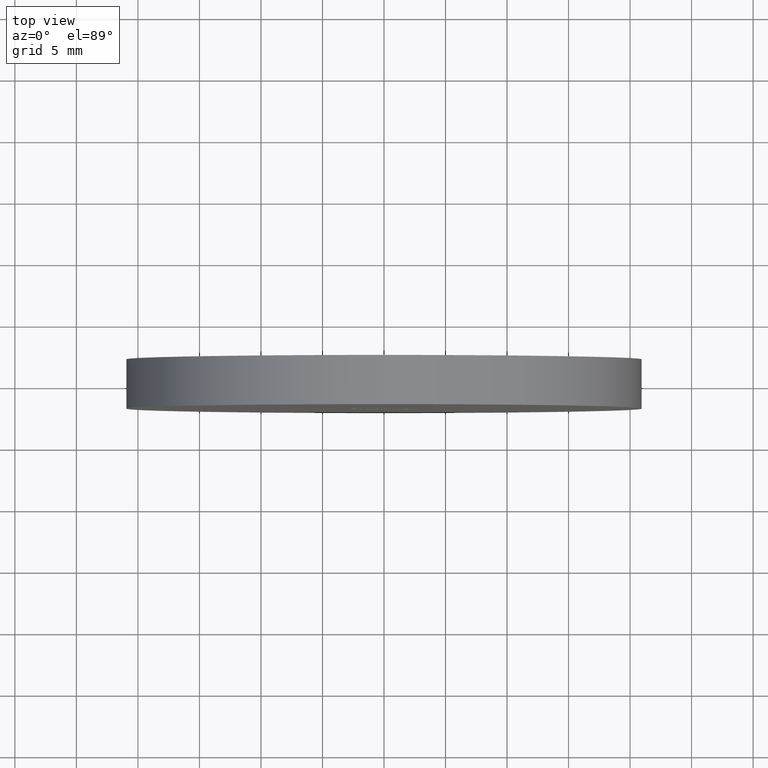
[diagram: clean part render]
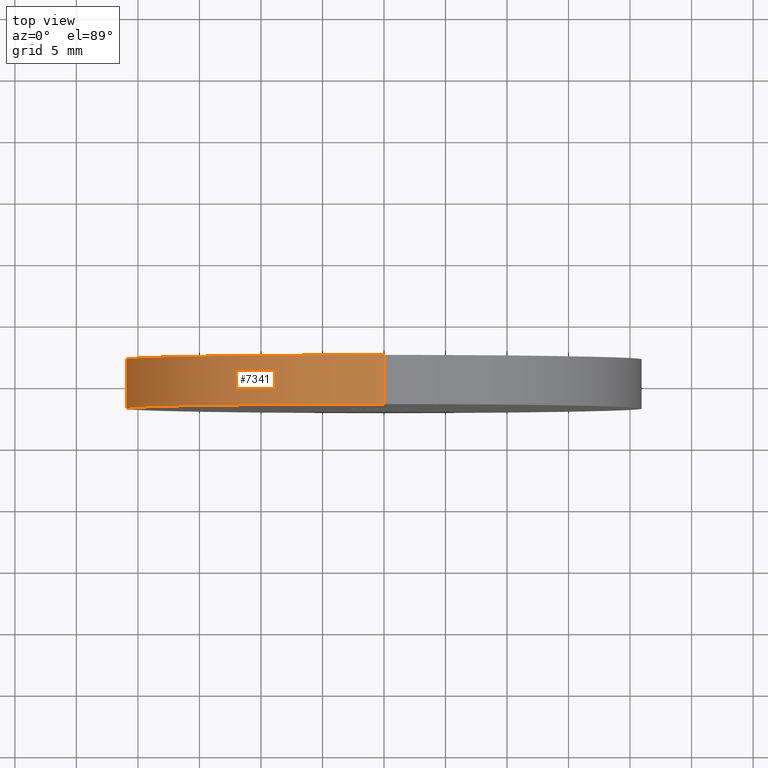
[diagram: same view with one face highlighted and labeled with its STEP entity id]
A machine part, top view. The second image highlights one B-rep face of the part: STEP entity #7341.
In plain terms, the highlighted cylindrical surface (partial cylindrical patch) has radius 21 mm, axis along (-0, -1, -0).
Its self-contained STEP definition (entity closure, byte-faithful):
#160 = DIRECTION ( 'NONE',  ( 0.000000000000000000, 0.000000000000000000, 1.000000000000000000 ) ) ;
#590 = CIRCLE ( 'NONE', #1925, 21.00000000000000000 ) ;
#825 = DIRECTION ( 'NONE',  ( 0.000000000000000000, 1.000000000000000000, 0.000000000000000000 ) ) ;
#914 = CARTESIAN_POINT ( 'NONE',  ( 0.000000000000000000, 2.000000000000000000, -21.00000000000000000 ) ) ;
#1718 = AXIS2_PLACEMENT_3D ( 'NONE', #6232, #825, #7151 ) ;
#1925 = AXIS2_PLACEMENT_3D ( 'NONE', #10852, #7354, #160 ) ;
#2267 = ORIENTED_EDGE ( 'NONE', *, *, #8345, .T. ) ;
#2754 = DIRECTION ( 'NONE',  ( 0.000000000000000000, 0.000000000000000000, -1.000000000000000000 ) ) ;
#3343 = EDGE_LOOP ( 'NONE', ( #5859, #7047, #7284, #2267 ) ) ;
#3388 = LINE ( 'NONE', #9151, #4527 ) ;
#3899 = VERTEX_POINT ( 'NONE', #6438 ) ;
#3971 = AXIS2_PLACEMENT_3D ( 'NONE', #9101, #8204, #2754 ) ;
#4527 = VECTOR ( 'NONE', #11015, 1000.000000000000000 ) ;
#5171 = VERTEX_POINT ( 'NONE', #9290 ) ;
#5652 = DIRECTION ( 'NONE',  ( -0.000000000000000000, -1.000000000000000000, -0.000000000000000000 ) ) ;
#5665 = CYLINDRICAL_SURFACE ( 'NONE', #3971, 21.00000000000000000 ) ;
#5859 = ORIENTED_EDGE ( 'NONE', *, *, #10977, .F. ) ;
#6232 = CARTESIAN_POINT ( 'NONE',  ( 0.000000000000000000, -2.000000000000000000, 0.000000000000000000 ) ) ;
#6438 = CARTESIAN_POINT ( 'NONE',  ( 2.571758278209441661E-15, -2.000000000000000000, 21.00000000000000000 ) ) ;
#6934 = LINE ( 'NONE', #8965, #10329 ) ;
#7047 = ORIENTED_EDGE ( 'NONE', *, *, #7364, .F. ) ;
#7151 = DIRECTION ( 'NONE',  ( 0.000000000000000000, 0.000000000000000000, 1.000000000000000000 ) ) ;
#7284 = ORIENTED_EDGE ( 'NONE', *, *, #8945, .T. ) ;
#7341 = ADVANCED_FACE ( 'NONE', ( #9641 ), #5665, .T. ) ;
#7354 = DIRECTION ( 'NONE',  ( 0.000000000000000000, 1.000000000000000000, 0.000000000000000000 ) ) ;
#7364 = EDGE_CURVE ( 'NONE', #9103, #10530, #590, .T. ) ;
#8204 = DIRECTION ( 'NONE',  ( -0.000000000000000000, -1.000000000000000000, -0.000000000000000000 ) ) ;
#8337 = CARTESIAN_POINT ( 'NONE',  ( 2.571758278209441661E-15, 2.000000000000000000, 21.00000000000000000 ) ) ;
#8345 = EDGE_CURVE ( 'NONE', #5171, #3899, #11168, .T. ) ;
#8945 = EDGE_CURVE ( 'NONE', #9103, #5171, #6934, .T. ) ;
#8965 = CARTESIAN_POINT ( 'NONE',  ( 0.000000000000000000, 2.000000000000000000, -21.00000000000000000 ) ) ;
#9101 = CARTESIAN_POINT ( 'NONE',  ( 0.000000000000000000, 2.000000000000000000, 0.000000000000000000 ) ) ;
#9103 = VERTEX_POINT ( 'NONE', #914 ) ;
#9151 = CARTESIAN_POINT ( 'NONE',  ( 2.571758278209441661E-15, 2.000000000000000000, 21.00000000000000000 ) ) ;
#9290 = CARTESIAN_POINT ( 'NONE',  ( 0.000000000000000000, -2.000000000000000000, -21.00000000000000000 ) ) ;
#9641 = FACE_OUTER_BOUND ( 'NONE', #3343, .T. ) ;
#10329 = VECTOR ( 'NONE', #5652, 1000.000000000000000 ) ;
#10530 = VERTEX_POINT ( 'NONE', #8337 ) ;
#10852 = CARTESIAN_POINT ( 'NONE',  ( 0.000000000000000000, 2.000000000000000000, 0.000000000000000000 ) ) ;
#10977 = EDGE_CURVE ( 'NONE', #10530, #3899, #3388, .T. ) ;
#11015 = DIRECTION ( 'NONE',  ( -0.000000000000000000, -1.000000000000000000, -0.000000000000000000 ) ) ;
#11168 = CIRCLE ( 'NONE', #1718, 21.00000000000000000 ) ;